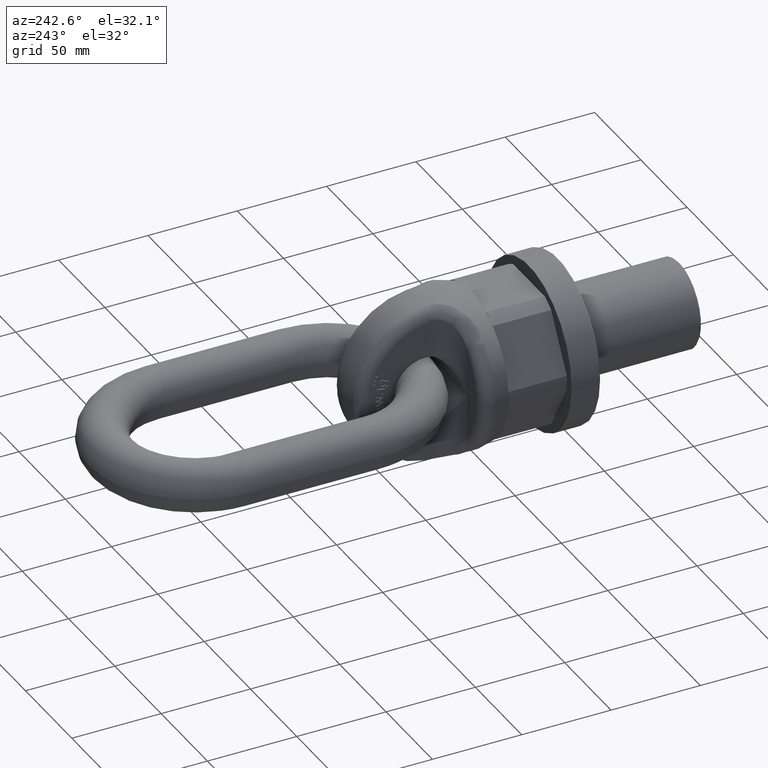
[diagram: clean part render]
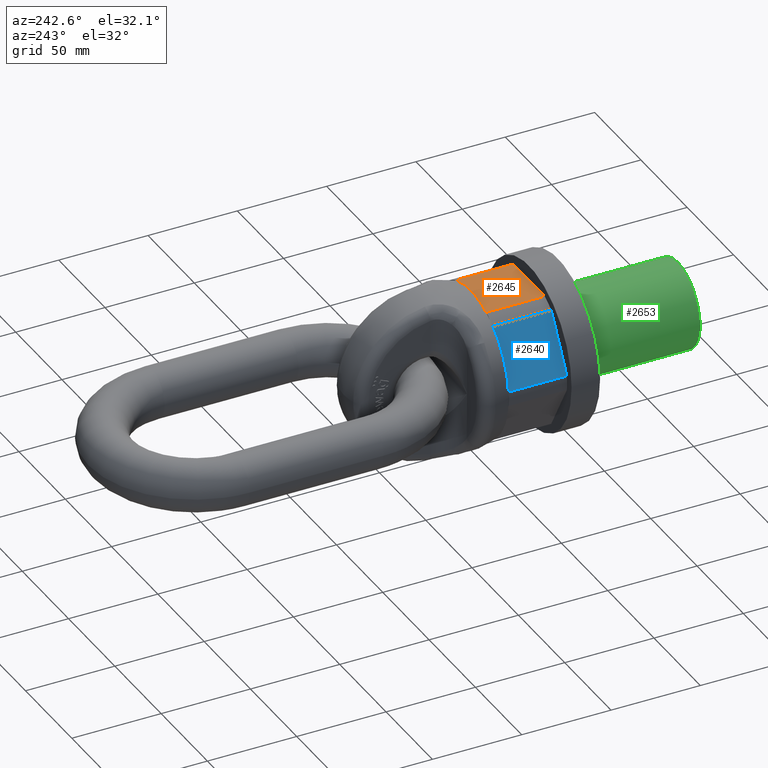
[diagram: same view with three faces highlighted in distinct colors, each labeled with its STEP entity id]
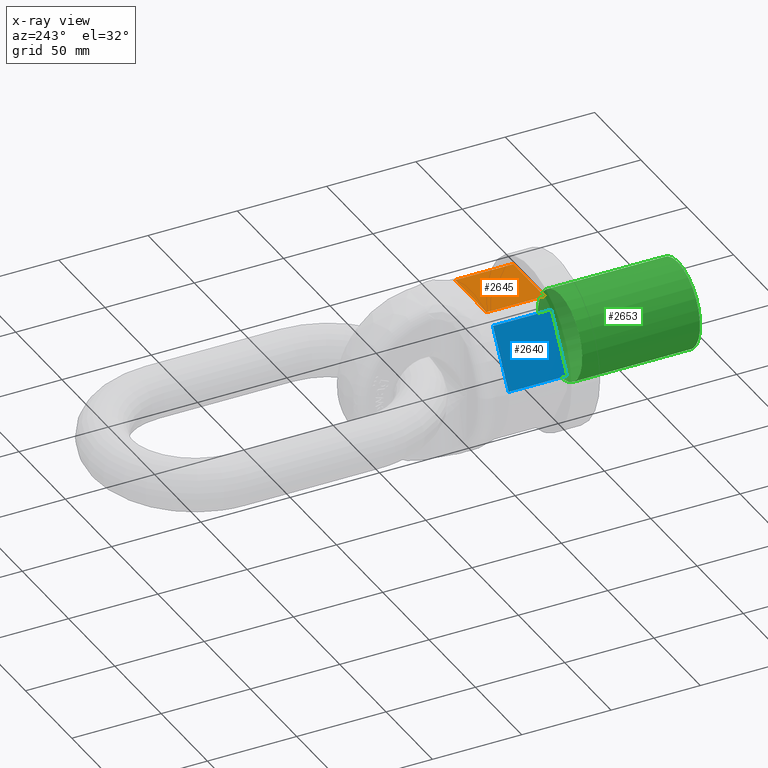
[diagram: x-ray of the same camera — body ghosted, the three highlighted faces saturated]
A machine part, auxiliary view with three faces highlighted in distinct colors.
The next image is the same camera in x-ray (body ghosted, the three faces saturated) — at least one of them is partly hidden behind the body in this view.
Their STEP definitions:

[orange] entity #2645 — the highlighted planar face has unit normal (0, 0, 1).
#1803=FACE_OUTER_BOUND('',#3068,.T.);
#2034=LINE('',#6574,#2290);
#2054=LINE('',#6627,#2310);
#2055=LINE('',#6629,#2311);
#2056=LINE('',#6631,#2312);
#2290=VECTOR('',#5814,1.);
#2310=VECTOR('',#5860,1.);
#2311=VECTOR('',#5861,1.);
#2312=VECTOR('',#5862,1.);
#2645=ADVANCED_FACE('',(#1803),#2887,.T.);
#2887=PLANE('',#5614);
#3068=EDGE_LOOP('',(#3380,#3381,#3382,#3383));
#3380=ORIENTED_EDGE('',*,*,#4964,.F.);
#3381=ORIENTED_EDGE('',*,*,#4938,.T.);
#3382=ORIENTED_EDGE('',*,*,#4965,.F.);
#3383=ORIENTED_EDGE('',*,*,#4966,.T.);
#4540=VERTEX_POINT('',#6573);
#4541=VERTEX_POINT('',#6575);
#4561=VERTEX_POINT('',#6628);
#4562=VERTEX_POINT('',#6630);
#4938=EDGE_CURVE('',#4541,#4540,#2034,.T.);
#4964=EDGE_CURVE('',#4541,#4561,#2054,.T.);
#4965=EDGE_CURVE('',#4562,#4540,#2055,.T.);
#4966=EDGE_CURVE('',#4562,#4561,#2056,.T.);
#5614=AXIS2_PLACEMENT_3D('',#6632,#5863,#5864);
#5814=DIRECTION('',(1.,4.81111242522174E-17,0.));
#5860=DIRECTION('',(-2.4492935982947E-17,1.,0.));
#5861=DIRECTION('',(2.4492935982947E-17,-1.,0.));
#5862=DIRECTION('',(-1.,0.,0.));
#5863=DIRECTION('',(0.,0.,1.));
#5864=DIRECTION('',(1.,0.,0.));
#6573=CARTESIAN_POINT('',(16.9096865730858,16.3333333333333,37.5));
#6574=CARTESIAN_POINT('',(46.,16.3333333333333,37.5));
#6575=CARTESIAN_POINT('',(-16.9096865730858,16.3333333333333,37.5));
#6627=CARTESIAN_POINT('',(-16.9096865730858,-4.14167870726291E-16,37.5));
#6628=CARTESIAN_POINT('',(-16.9096865730858,49.,37.5));
#6629=CARTESIAN_POINT('',(16.9096865730858,4.14167870726291E-16,37.5));
#6630=CARTESIAN_POINT('',(16.9096865730858,49.,37.5));
#6631=CARTESIAN_POINT('',(21.650635094611,49.,37.5));
#6632=CARTESIAN_POINT('',(21.650635094611,49.,37.5));

[blue] entity #2640 — the highlighted planar face has unit normal (-0.866, 0, 0.5).
#1798=FACE_OUTER_BOUND('',#3063,.T.);
#2035=LINE('',#6578,#2291);
#2039=LINE('',#6597,#2295);
#2040=LINE('',#6599,#2296);
#2041=LINE('',#6601,#2297);
#2291=VECTOR('',#5817,1.);
#2295=VECTOR('',#5835,1.);
#2296=VECTOR('',#5836,1.);
#2297=VECTOR('',#5837,1.);
#2640=ADVANCED_FACE('',(#1798),#2882,.T.);
#2882=PLANE('',#5609);
#3063=EDGE_LOOP('',(#3360,#3361,#3362,#3363));
#3360=ORIENTED_EDGE('',*,*,#4949,.F.);
#3361=ORIENTED_EDGE('',*,*,#4940,.T.);
#3362=ORIENTED_EDGE('',*,*,#4950,.F.);
#3363=ORIENTED_EDGE('',*,*,#4951,.T.);
#4542=VERTEX_POINT('',#6577);
#4543=VERTEX_POINT('',#6579);
#4551=VERTEX_POINT('',#6598);
#4552=VERTEX_POINT('',#6600);
#4940=EDGE_CURVE('',#4543,#4542,#2035,.T.);
#4949=EDGE_CURVE('',#4543,#4551,#2039,.T.);
#4950=EDGE_CURVE('',#4552,#4542,#2040,.T.);
#4951=EDGE_CURVE('',#4552,#4551,#2041,.T.);
#5609=AXIS2_PLACEMENT_3D('',#6602,#5838,#5839);
#5817=DIRECTION('',(0.499999999999999,2.40555621261087E-17,0.866025403784439));
#5835=DIRECTION('',(-2.4492935982947E-17,1.,0.));
#5836=DIRECTION('',(2.4492935982947E-17,-1.,0.));
#5837=DIRECTION('',(-0.499999999999999,0.,-0.866025403784439));
#5838=DIRECTION('',(-0.866025403784439,0.,0.499999999999999));
#5839=DIRECTION('',(0.499999999999999,0.,0.866025403784439));
#6577=CARTESIAN_POINT('',(-24.0211093553735,16.3333333333333,33.394218142325));
#6578=CARTESIAN_POINT('',(-20.9759526419165,16.3333333333333,38.668584287042));
#6579=CARTESIAN_POINT('',(-40.9307959284594,16.3333333333333,4.10578185767493));
#6597=CARTESIAN_POINT('',(-40.9307959284594,-2.07083935363146E-16,4.10578185767493));
#6598=CARTESIAN_POINT('',(-40.9307959284594,49.,4.10578185767492));
#6599=CARTESIAN_POINT('',(-24.0211093553735,2.07083935363146E-16,33.394218142325));
#6600=CARTESIAN_POINT('',(-24.0211093553735,49.,33.394218142325));
#6601=CARTESIAN_POINT('',(-21.650635094611,49.,37.5));
#6602=CARTESIAN_POINT('',(-21.650635094611,49.,37.5));

[green] entity #2653 — the highlighted cylindrical surface (bore or boss wall) has radius 24 mm, axis along (0, 1, 0).
#2019=CYLINDRICAL_SURFACE('',#5630,24.);
#2653=ADVANCED_FACE('',(#2991,#2992),#2019,.T.);
#2991=FACE_BOUND('',#3076,.T.);
#2992=FACE_BOUND('',#3077,.T.);
#3076=EDGE_LOOP('',(#3420));
#3077=EDGE_LOOP('',(#3421));
#3420=ORIENTED_EDGE('',*,*,#4973,.T.);
#3421=ORIENTED_EDGE('',*,*,#4974,.T.);
#4563=VERTEX_POINT('',#6647);
#4564=VERTEX_POINT('',#6649);
#4973=EDGE_CURVE('',#4563,#4563,#5545,.T.);
#4974=EDGE_CURVE('',#4564,#4564,#5546,.T.);
#5545=CIRCLE('',#5628,24.);
#5546=CIRCLE('',#5629,24.);
#5628=AXIS2_PLACEMENT_3D('',#6646,#5891,#5892);
#5629=AXIS2_PLACEMENT_3D('',#6648,#5893,#5894);
#5630=AXIS2_PLACEMENT_3D('',#6650,#5895,#5896);
#5891=DIRECTION('',(4.81111242522174E-17,-1.,0.));
#5892=DIRECTION('',(1.,4.51750905202294E-17,0.));
#5893=DIRECTION('',(0.,1.,0.));
#5894=DIRECTION('',(0.,0.,1.));
#5895=DIRECTION('',(0.,1.,0.));
#5896=DIRECTION('',(0.,0.,1.));
#6646=CARTESIAN_POINT('',(0.,-1.,0.));
#6647=CARTESIAN_POINT('',(24.,-1.,0.));
#6648=CARTESIAN_POINT('',(0.,-67.,0.));
#6649=CARTESIAN_POINT('',(0.,-67.,24.));
#6650=CARTESIAN_POINT('',(0.,-68.,0.));